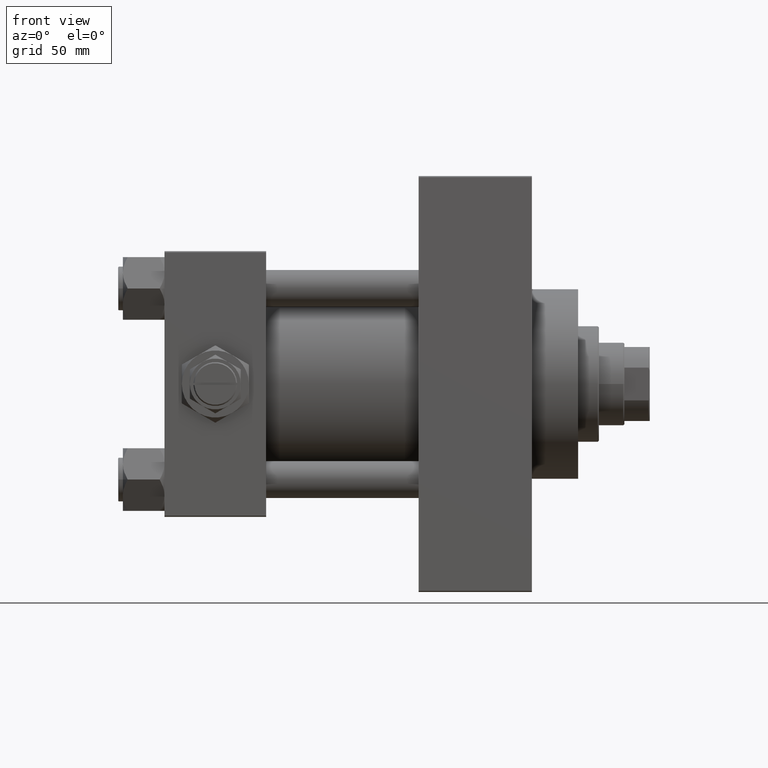
[diagram: clean part render]
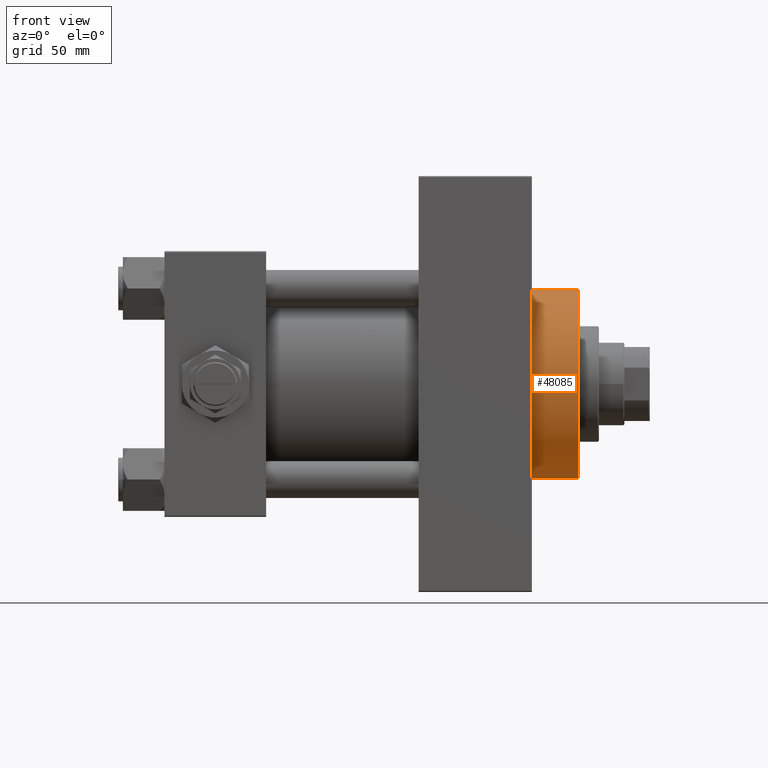
[diagram: same view with one face highlighted and labeled with its STEP entity id]
A machine part, front view. The second image highlights one B-rep face of the part: STEP entity #48085.
In plain terms, the highlighted cylindrical surface (partial cylindrical patch) has radius 41 mm, axis along (-1, -0, -0).
Its self-contained STEP definition (entity closure, byte-faithful):
#95 = CARTESIAN_POINT ( 'NONE',  ( 179.0000000000000000, 0.000000000000000000, 0.000000000000000000 ) ) ;
#3603 = CIRCLE ( 'NONE', #12428, 41.00000000000000000 ) ;
#4334 = DIRECTION ( 'NONE',  ( 0.000000000000000000, 0.000000000000000000, -1.000000000000000000 ) ) ;
#10711 = EDGE_LOOP ( 'NONE', ( #44169, #35260, #18618, #25478 ) ) ;
#11557 = CARTESIAN_POINT ( 'NONE',  ( 179.0000000000000000, 5.021051876504148963E-15, -41.00000000000000000 ) ) ;
#12428 = AXIS2_PLACEMENT_3D ( 'NONE', #29838, #15060, #17834 ) ;
#12537 = DIRECTION ( 'NONE',  ( -1.000000000000000000, -0.000000000000000000, -0.000000000000000000 ) ) ;
#14481 = VERTEX_POINT ( 'NONE', #34245 ) ;
#14981 = CARTESIAN_POINT ( 'NONE',  ( 179.0000000000000000, 0.000000000000000000, 41.00000000000000000 ) ) ;
#15060 = DIRECTION ( 'NONE',  ( 1.000000000000000000, 0.000000000000000000, 0.000000000000000000 ) ) ;
#16544 = CYLINDRICAL_SURFACE ( 'NONE', #41282, 41.00000000000000000 ) ;
#17834 = DIRECTION ( 'NONE',  ( 0.000000000000000000, 0.000000000000000000, -1.000000000000000000 ) ) ;
#18006 = VECTOR ( 'NONE', #31219, 1000.000000000000000 ) ;
#18618 = ORIENTED_EDGE ( 'NONE', *, *, #44718, .T. ) ;
#19809 = CARTESIAN_POINT ( 'NONE',  ( 179.0000000000000000, 5.021051876504148963E-15, -41.00000000000000000 ) ) ;
#20047 = DIRECTION ( 'NONE',  ( 0.000000000000000000, 0.000000000000000000, 1.000000000000000000 ) ) ;
#20212 = VERTEX_POINT ( 'NONE', #11557 ) ;
#23815 = DIRECTION ( 'NONE',  ( -1.000000000000000000, -0.000000000000000000, -0.000000000000000000 ) ) ;
#24064 = LINE ( 'NONE', #19809, #29885 ) ;
#24672 = LINE ( 'NONE', #46182, #18006 ) ;
#25478 = ORIENTED_EDGE ( 'NONE', *, *, #32934, .T. ) ;
#27542 = VERTEX_POINT ( 'NONE', #31052 ) ;
#27561 = CARTESIAN_POINT ( 'NONE',  ( 179.0000000000000000, 0.000000000000000000, 0.000000000000000000 ) ) ;
#29453 = EDGE_CURVE ( 'NONE', #20212, #14481, #24064, .T. ) ;
#29838 = CARTESIAN_POINT ( 'NONE',  ( 159.0000000000000000, 0.000000000000000000, 0.000000000000000000 ) ) ;
#29885 = VECTOR ( 'NONE', #12537, 1000.000000000000000 ) ;
#31052 = CARTESIAN_POINT ( 'NONE',  ( 159.0000000000000000, 0.000000000000000000, 41.00000000000000000 ) ) ;
#31219 = DIRECTION ( 'NONE',  ( -1.000000000000000000, -0.000000000000000000, -0.000000000000000000 ) ) ;
#32934 = EDGE_CURVE ( 'NONE', #27542, #14481, #3603, .T. ) ;
#33273 = AXIS2_PLACEMENT_3D ( 'NONE', #95, #34614, #4334 ) ;
#34245 = CARTESIAN_POINT ( 'NONE',  ( 159.0000000000000000, 5.021051876504148963E-15, -41.00000000000000000 ) ) ;
#34614 = DIRECTION ( 'NONE',  ( 1.000000000000000000, 0.000000000000000000, 0.000000000000000000 ) ) ;
#35260 = ORIENTED_EDGE ( 'NONE', *, *, #47680, .F. ) ;
#41282 = AXIS2_PLACEMENT_3D ( 'NONE', #27561, #23815, #20047 ) ;
#44169 = ORIENTED_EDGE ( 'NONE', *, *, #29453, .F. ) ;
#44718 = EDGE_CURVE ( 'NONE', #45640, #27542, #24672, .T. ) ;
#45640 = VERTEX_POINT ( 'NONE', #14981 ) ;
#46017 = FACE_OUTER_BOUND ( 'NONE', #10711, .T. ) ;
#46182 = CARTESIAN_POINT ( 'NONE',  ( 179.0000000000000000, 0.000000000000000000, 41.00000000000000000 ) ) ;
#47680 = EDGE_CURVE ( 'NONE', #45640, #20212, #49194, .T. ) ;
#48085 = ADVANCED_FACE ( 'NONE', ( #46017 ), #16544, .T. ) ;
#49194 = CIRCLE ( 'NONE', #33273, 41.00000000000000000 ) ;